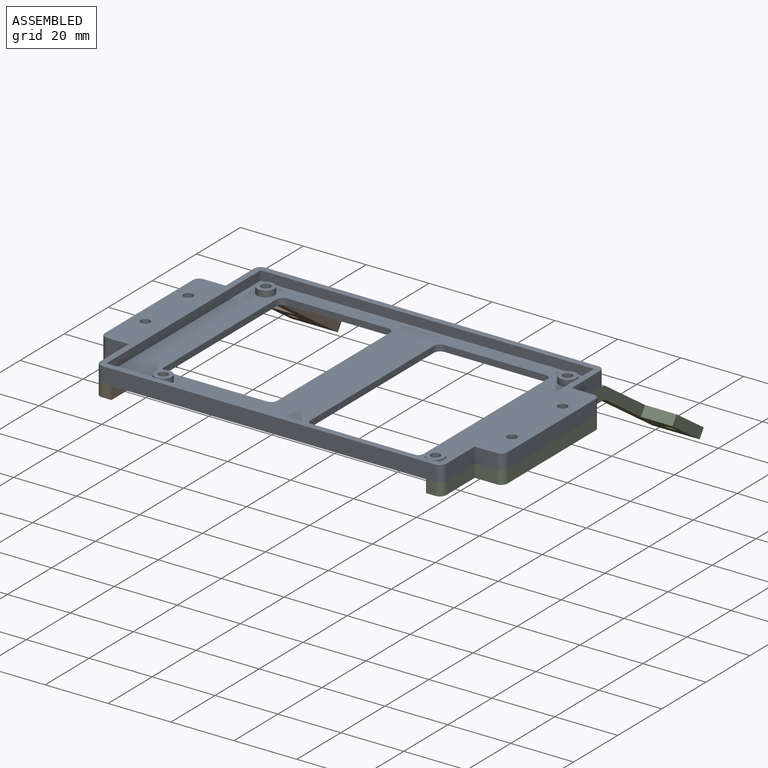
[diagram: assembled view]
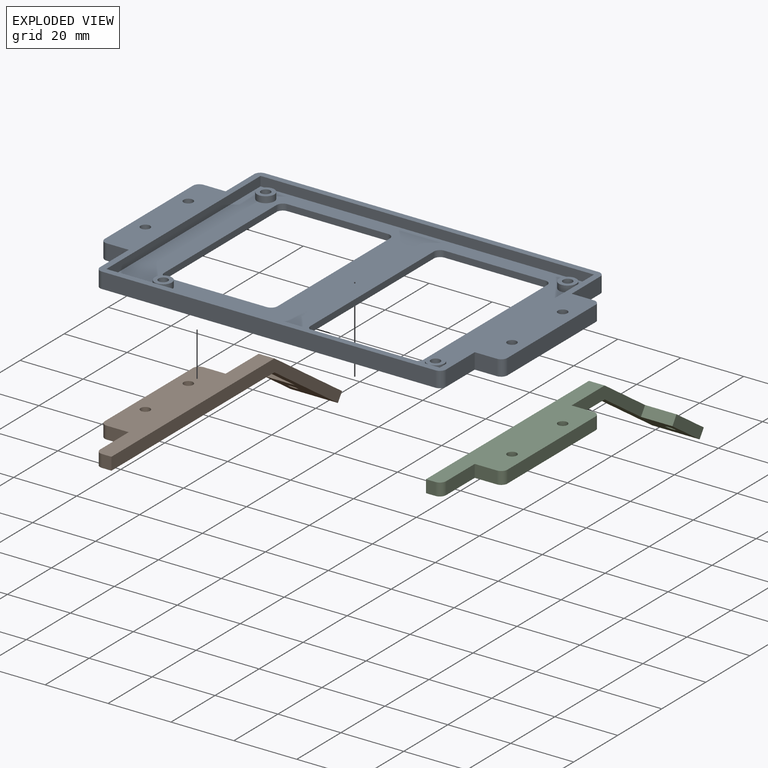
[diagram: exploded view]
GUIDED TOUR — MATED ASSEMBLY (Onshape document b38537ff23658e67a7022835, AutoMate assembly b38537ff23658e67a7022835_7bfc7229975b4f6cf5c11b7d_6aadd02ad1c09a29b3887e5f_default)

This assembly has 3 components, labeled P0..P2 below (a component is one placed occurrence of a part; the same part can appear more than once), held together by 2 mates. A mate is a constraint between two components; its type names the relative motion it leaves free:
  FASTENED — locks the two components together rigidly (no relative motion).
Axis/direction vectors are unit vectors and 'through' points are millimeter coordinates, both in the assembly's world frame.

MATES
  1. FASTENED "Fastened 2": P2 <-> P0, direction (0.000, 0.000, 1.000) through (55.48, -12.83, -35.52) mm
  2. FASTENED "Fastened 1": P1 <-> P0, direction (0.000, 0.000, 1.000) through (-63.52, -12.83, -35.52) mm

ASSEMBLY ORDER
  1. P2 — the base component [order verified]
  2. P1 [order verified]
  3. P0 [order verified]
Order-tag legend:
  [order verified] — this step's position reverses a verified removal order: the component was checked to insert without passing through the ones already placed.

Of the 3 components, 1 carries the full construction recipe — the FeatureScript program that regenerates the part's solid from scratch; the rest are supplied as boundary geometry only.
Each toured component is shown spotlighted twice — in the assembled view, then in the exploded view, where a leader line traces a displaced component back to its assembled socket (saturated green if recipe-attached, orange if geometry-only; every other component desaturated gray) — followed by its recipe or geometry summary and the mates that hold it.
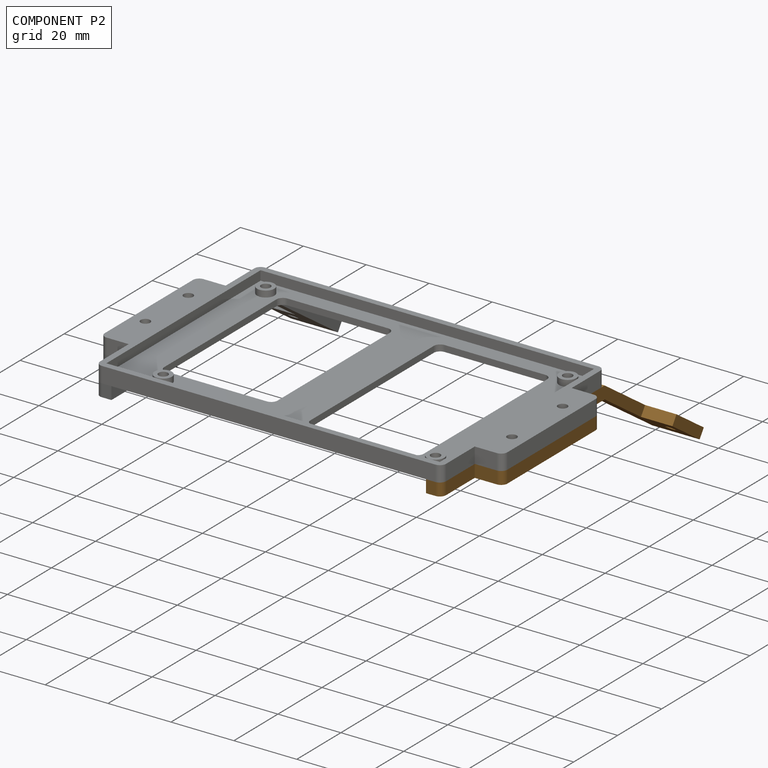
[diagram: component P2 — assembled]
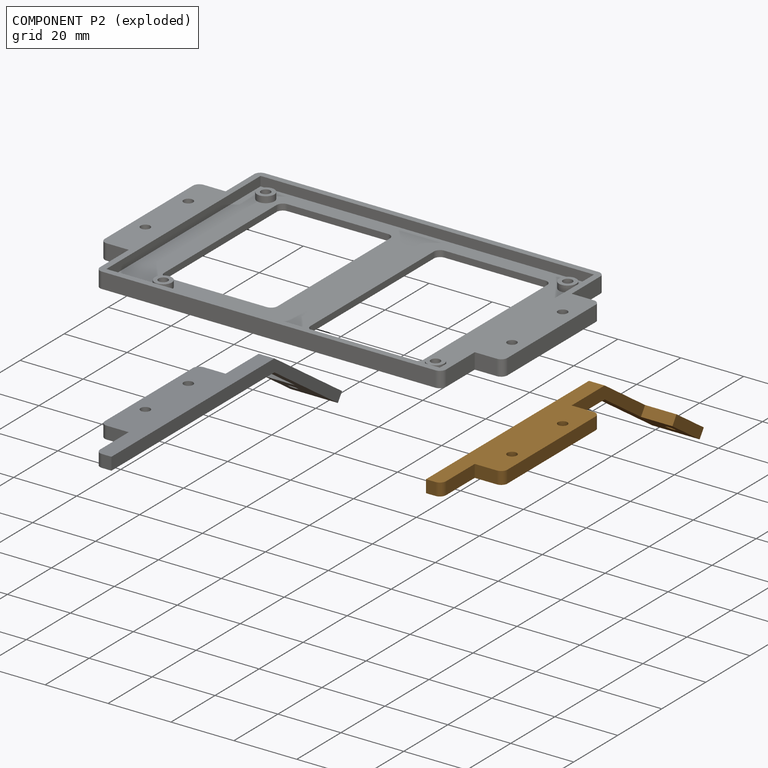
[diagram: component P2 — exploded]
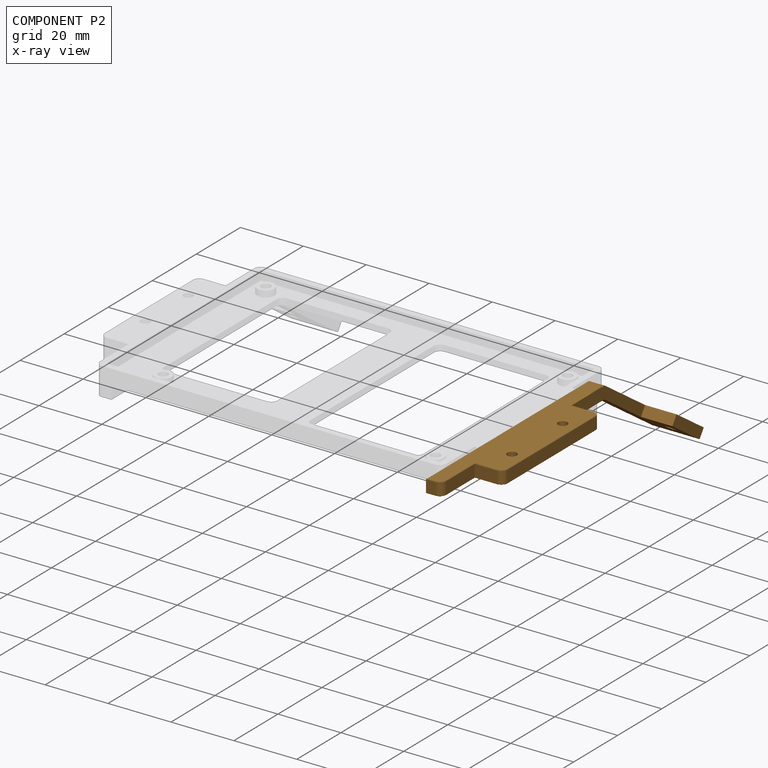
[diagram: component P2 — x-ray view]
COMPONENT P2 — geometry summary (no construction recipe available for this part):
  bounding box: 104.7 x 23.8 x 15.0 mm
  B-rep topology: 1 solid, 21 faces, 122 edges
  volume: 4064 mm^3 (11% of its bounding box)
Held by: FASTENED mate "Fastened 2" to P0.
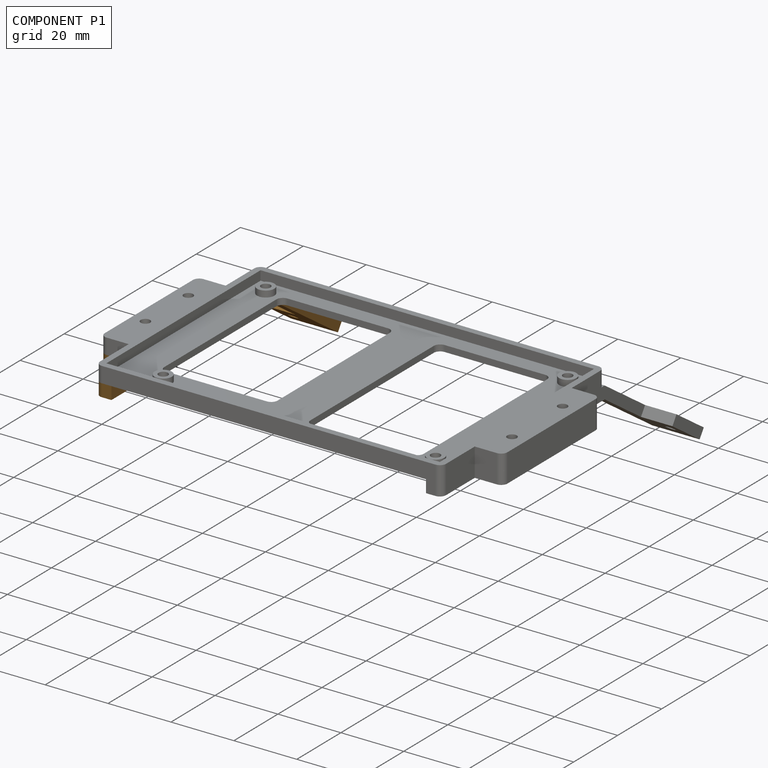
[diagram: component P1 — assembled]
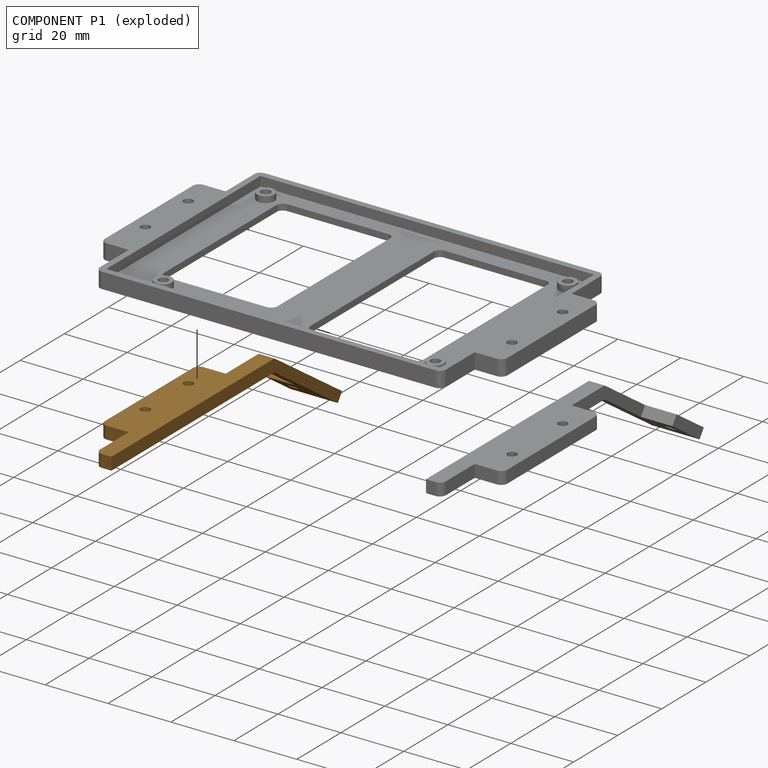
[diagram: component P1 — exploded]
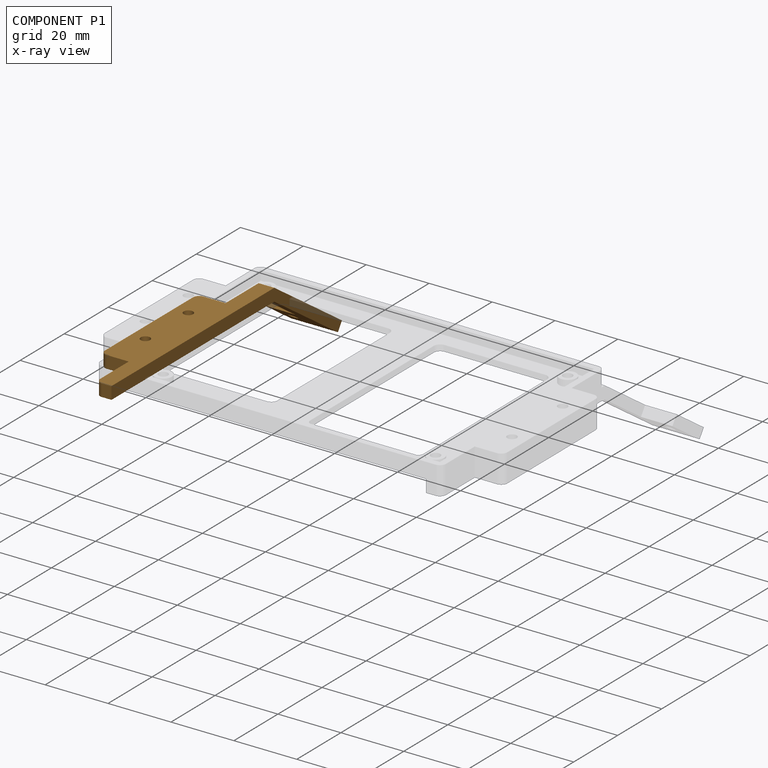
[diagram: component P1 — x-ray view]
COMPONENT P1 — geometry summary (no construction recipe available for this part):
  bounding box: 104.7 x 23.8 x 15.0 mm
  B-rep topology: 1 solid, 21 faces, 122 edges
  volume: 4064 mm^3 (11% of its bounding box)
Held by: FASTENED mate "Fastened 1" to P0.
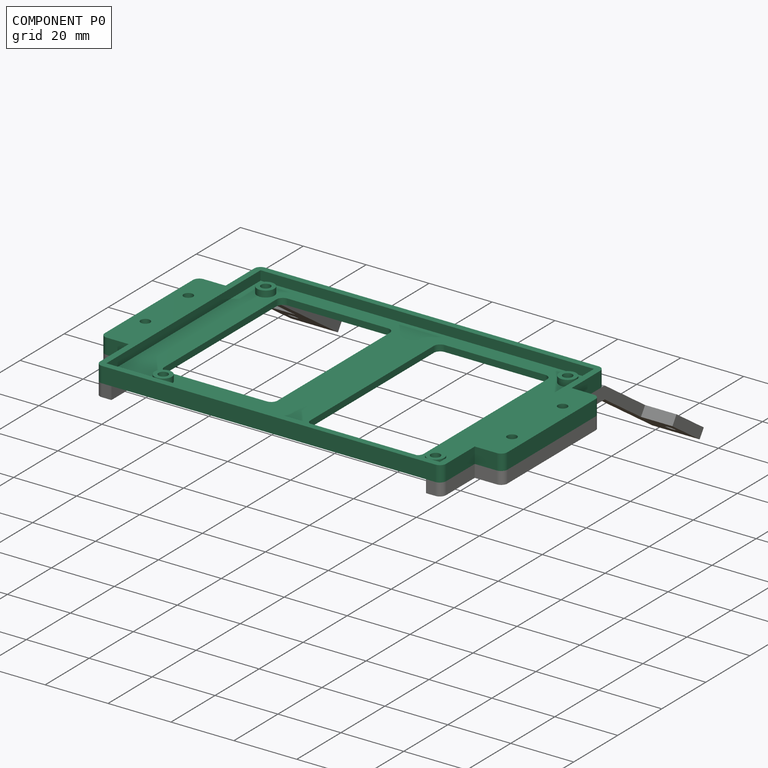
[diagram: component P0 — assembled]
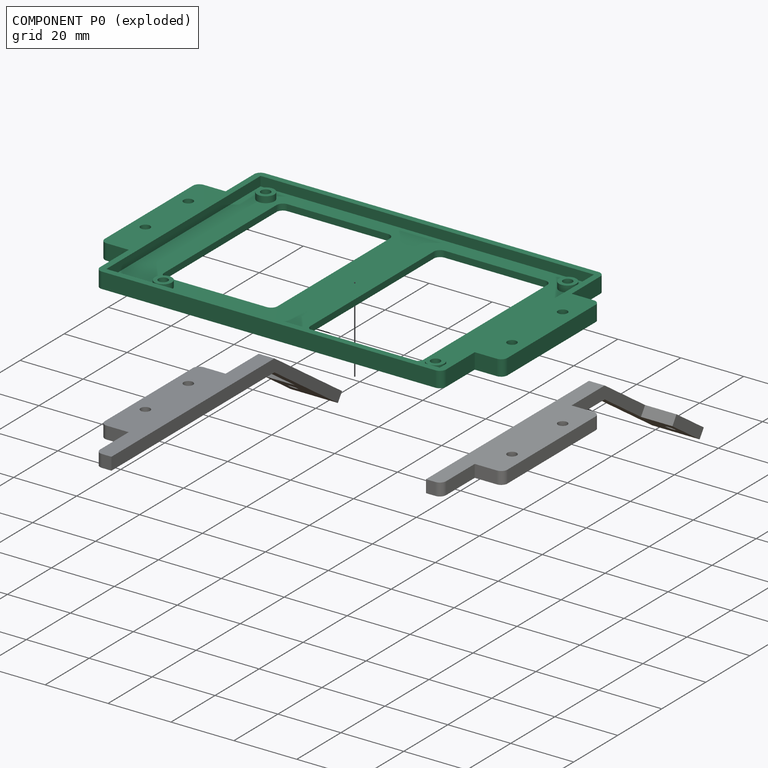
[diagram: component P0 — exploded]
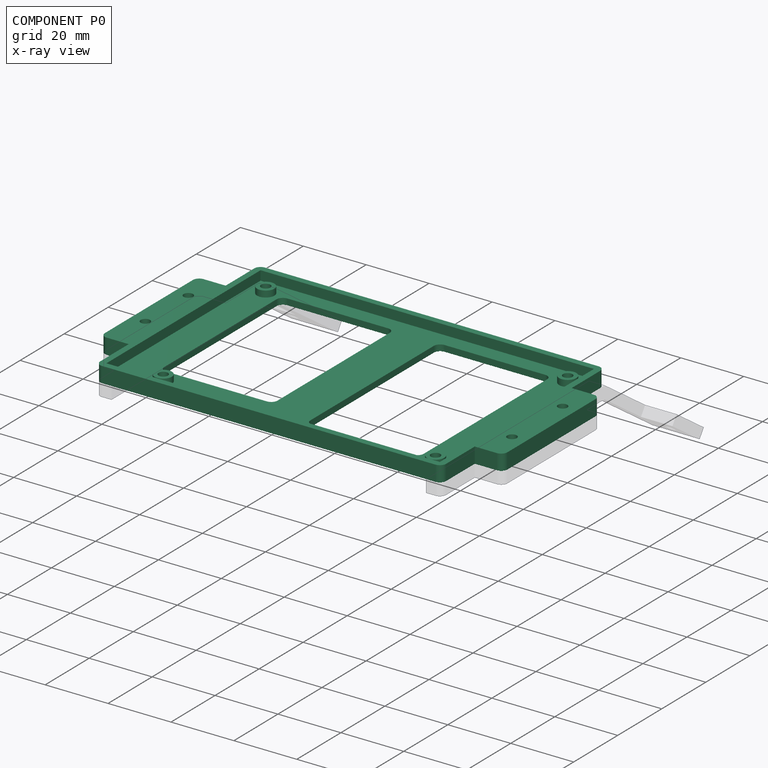
[diagram: component P0 — x-ray view]
COMPONENT P0 — recipe-attached (CADFS 00194304, mesh-verified: the recipe's output STEP matches this component's geometry to below the mesh-comparison resolution (tessellation chordal tolerance ~0.222 mm)).
Held by: FASTENED mate "Fastened 2" to P2; FASTENED mate "Fastened 1" to P1.
Construction recipe (FeatureScript — the CAD program that rebuilds this solid; sketch coordinates are in the units given by the * unit suffixes, e.g. mm):

FeatureScript 1511;
import(path : "onshape/std/geometry.fs", version : "1511.0");
import(path : "onshape/std/common.fs", version : "1511.0");
const mm = millimeter;
const VERTEX = EntityType.VERTEX;
const EDGE = EntityType.EDGE;
const FACE = EntityType.FACE;
const BODY = EntityType.BODY;
function v(x, y){return vector(x, y);}
function OD(order){return orderDisambiguation(order);}
function OSD(set){return originalSetDisambiguation(set);}
function TD(topology){return topologyDisambiguation(topology);}
function TDD(query){return trueDependencyDisambiguation(query);}
function sQuery(a, b, c) {return sketchEntityQuery(a, b, c);}

annotation { "Feature Type Name" : "Feature", "Feature Type Description" : "" }
export const myFeature = defineFeature(function(context is Context, id is Id, definition is map)
    precondition{}
    {
        {
            var Q0;
            Q0=qCreatedBy(makeId("Top.planeOp"),FACE);
            var sketch = newSketch(context, id + "F0", { "sketchPlane" : qUnion([Q0])});
            skLineSegment(sketch, "E0.bottom", {"start": v(-53.24, 37.4) * mm, "end": v(52.76, 37.4) * mm});
            skLineSegment(sketch, "E0.top", {"start": v(-53.24, -32.6) * mm, "end": v(52.76, -32.6) * mm});
            skLineSegment(sketch, "E0.left", {"start": v(-53.24, 37.4) * mm, "end": v(-53.24, -32.6) * mm});
            skLineSegment(sketch, "E0.right", {"start": v(52.76, 37.4) * mm, "end": v(52.76, -32.6) * mm});
            skCircle(sketch, "E1", {"center": v(-38.5, -27.85) * mm, "radius": 1.5 * mm});
            skCircle(sketch, "E2", {"center": v(-47.74, 31.9) * mm, "radius": 1.5 * mm});
            skCircle(sketch, "E3", {"center": v(48.26, 31.9) * mm, "radius": 1.5 * mm});
            skCircle(sketch, "E4", {"center": v(48.26, -28.1) * mm, "radius": 1.5 * mm});
            skLineSegment(sketch, "E5.0", {"start": v(-55.24, 37.4) * mm, "end": v(-55.24, -32.6) * mm});
            skLineSegment(sketch, "E5.1", {"start": v(-53.24, 39.4) * mm, "end": v(52.76, 39.4) * mm});
            skLineSegment(sketch, "E5.2", {"start": v(54.76, 37.4) * mm, "end": v(54.76, -32.6) * mm});
            skLineSegment(sketch, "E5.3", {"start": v(-53.24, -34.6) * mm, "end": v(52.76, -34.6) * mm});
            skPoint(sketch, "E6.visualSharp", {"position": v(-55.24, 39.4) * mm});
            skArc(sketch, "E6.filletArc", {"start": v(-53.24, 39.4) * mm, "mid": v(-54.66, 38.82) * mm, "end": v(-55.24, 37.4) * mm});
            skPoint(sketch, "E7.visualSharp", {"position": v(-55.24, -34.6) * mm});
            skArc(sketch, "E7.filletArc", {"start": v(-55.24, -32.6) * mm, "mid": v(-54.66, -34.01) * mm, "end": v(-53.24, -34.6) * mm});
            skPoint(sketch, "E8.visualSharp", {"position": v(54.76, -34.6) * mm});
            skArc(sketch, "E8.filletArc", {"start": v(52.76, -34.6) * mm, "mid": v(54.17, -34.01) * mm, "end": v(54.76, -32.6) * mm});
            skPoint(sketch, "E9.visualSharp", {"position": v(54.76, 39.4) * mm});
            skArc(sketch, "E9.filletArc", {"start": v(54.76, 37.4) * mm, "mid": v(54.17, 38.82) * mm, "end": v(52.76, 39.4) * mm});
            skLineSegment(sketch, "E10.bottom", {"start": v(-55.24, 24.4) * mm, "end": v(-64.24, 24.4) * mm});
            skLineSegment(sketch, "E10.top", {"start": v(-55.24, -19.6) * mm, "end": v(-64.24, -19.6) * mm});
            skLineSegment(sketch, "E10.left", {"start": v(-55.24, 24.4) * mm, "end": v(-55.24, -19.6) * mm});
            skLineSegment(sketch, "E10.right", {"start": v(-64.24, 24.4) * mm, "end": v(-64.24, -19.6) * mm});
            skLineSegment(sketch, "E11.bottom", {"start": v(54.76, 24.4) * mm, "end": v(63.76, 24.4) * mm});
            skLineSegment(sketch, "E11.top", {"start": v(54.76, -19.6) * mm, "end": v(63.76, -19.6) * mm});
            skLineSegment(sketch, "E11.left", {"start": v(54.76, 24.4) * mm, "end": v(54.76, -19.6) * mm});
            skLineSegment(sketch, "E11.right", {"start": v(63.76, 24.4) * mm, "end": v(63.76, -19.6) * mm});
            skPoint(sketch, "E12", {"position": v(-59.7, 0) * mm});
            skPoint(sketch, "E13", {"position": v(59.26, 0) * mm});
            skCircle(sketch, "E14", {"center": v(-59.74, 13.9) * mm, "radius": 1.5 * mm});
            skCircle(sketch, "E15", {"center": v(-59.74, -5.6) * mm, "radius": 1.5 * mm});
            skCircle(sketch, "E16", {"center": v(59.26, 13.9) * mm, "radius": 1.5 * mm});
            skCircle(sketch, "E17", {"center": v(59.26, -9.1) * mm, "radius": 1.5 * mm});
            skCircle(sketch, "E18.0", {"center": v(-47.74, 31.9) * mm, "radius": 2.75 * mm});
            skCircle(sketch, "E19.0", {"center": v(48.26, 31.9) * mm, "radius": 2.75 * mm});
            skCircle(sketch, "E20.0", {"center": v(48.26, -28.1) * mm, "radius": 2.75 * mm});
            skCircle(sketch, "E21.0", {"center": v(-38.5, -27.85) * mm, "radius": 2.75 * mm});
            skSolve(sketch);
        }
        {
            var Q0;
            Q0=makeQuery(id+"F0.imprint","IMPRINT",FACE,{"disambiguationData":[TD([[makeQuery(id+"F0.imprint","IMPRINT",EDGE,{"derivedFrom":sQuery(id+"F0.wireOp",EDGE,"E0.bottom")}),-1.0]])]});
            extrude(context, id + "F1", {"entities" : qUnion([Q0]), "depth" : 2 * mm});
        }
        {
            var Q0;
            Q0=makeQuery(id+"F0.imprint","IMPRINT",FACE,{"disambiguationData":[TD([[makeQuery(id+"F0.imprint","IMPRINT",EDGE,{"derivedFrom":sQuery(id+"F0.wireOp",EDGE,"E2")}),-1.0]])]});
            var Q1;
            Q1=makeQuery(id+"F0.imprint","IMPRINT",FACE,{"disambiguationData":[TD([[makeQuery(id+"F0.imprint","IMPRINT",EDGE,{"derivedFrom":sQuery(id+"F0.wireOp",EDGE,"E1")}),-1.0]])]});
            var Q2;
            Q2=makeQuery(id+"F0.imprint","IMPRINT",FACE,{"disambiguationData":[TD([[makeQuery(id+"F0.imprint","IMPRINT",EDGE,{"derivedFrom":sQuery(id+"F0.wireOp",EDGE,"E4")}),-1.0]])]});
            var Q3;
            Q3=makeQuery(id+"F0.imprint","IMPRINT",FACE,{"disambiguationData":[TD([[makeQuery(id+"F0.imprint","IMPRINT",EDGE,{"derivedFrom":sQuery(id+"F0.wireOp",EDGE,"E3")}),-1.0]])]});
            extrude(context, id + "F2", {"entities" : qUnion([Q0, Q1, Q2, Q3]), "operationType" : NewBodyOperationType.ADD, "depth" : 4 * mm});
        }
        {
            var Q0;
            Q0=makeQuery(id+"F0.imprint","IMPRINT",FACE,{"disambiguationData":[TD([[makeQuery(id+"F0.imprint","IMPRINT",EDGE,{"derivedFrom":sQuery(id+"F0.wireOp",EDGE,"E10.bottom")}),1.0]])]});
            var Q1;
            Q1=makeQuery(id+"F0.imprint","IMPRINT",FACE,{"disambiguationData":[TD([[makeQuery(id+"F0.imprint","IMPRINT",EDGE,{"derivedFrom":sQuery(id+"F0.wireOp",EDGE,"E0.bottom")}),1.0]])]});
            var Q2;
            Q2=makeQuery(id+"F0.imprint","IMPRINT",FACE,{"disambiguationData":[TD([[makeQuery(id+"F0.imprint","IMPRINT",EDGE,{"derivedFrom":sQuery(id+"F0.wireOp",EDGE,"E11.bottom")}),-1.0]])]});
            extrude(context, id + "F3", {"entities" : qUnion([Q0, Q1, Q2]), "operationType" : NewBodyOperationType.ADD, "depth" : 5 * mm});
        }
        {
            var Q0;
            Q0=makeQuery(id+"F3.opExtrude","SWEPT_EDGE",EDGE,{"disambiguationData":[OSD([sQuery(id+"F0.wireOp",EDGE,"E10.bottom"),sQuery(id+"F0.wireOp",EDGE,"E10.right")])]});
            var Q1;
            Q1=makeQuery(id+"F3.opExtrude","SWEPT_EDGE",EDGE,{"disambiguationData":[OSD([sQuery(id+"F0.wireOp",EDGE,"E10.top"),sQuery(id+"F0.wireOp",EDGE,"E10.right")])]});
            var Q2;
            Q2=makeQuery(id+"F3.opExtrude","SWEPT_EDGE",EDGE,{"disambiguationData":[OSD([sQuery(id+"F0.wireOp",EDGE,"E11.top"),sQuery(id+"F0.wireOp",EDGE,"E11.right")])]});
            var Q3;
            Q3=makeQuery(id+"F3.opExtrude","SWEPT_EDGE",EDGE,{"disambiguationData":[OSD([sQuery(id+"F0.wireOp",EDGE,"E11.bottom"),sQuery(id+"F0.wireOp",EDGE,"E11.right")])]});
            fillet(context, id + "F4", {"entities" : qUnion([Q0, Q1, Q2, Q3]), "radius" : 2 * mm, "tangentPropagation" : true, "allowEdgeOverflow" : false});
        }
        {
            var Q0;
            Q0=makeQuery(id+"F1.opExtrude","CAP_FACE",FACE,{"disambiguationData":[OSD([sQuery(id+"F0.wireOp",EDGE,"E0.bottom"),sQuery(id+"F0.wireOp",EDGE,"E0.top"),sQuery(id+"F0.wireOp",EDGE,"E0.left"),sQuery(id+"F0.wireOp",EDGE,"E0.right"),sQuery(id+"F0.wireOp",EDGE,"E18.0"),sQuery(id+"F0.wireOp",EDGE,"E19.0"),sQuery(id+"F0.wireOp",EDGE,"E20.0"),sQuery(id+"F0.wireOp",EDGE,"E21.0")])],"isStart":false});
            var sketch = newSketch(context, id + "F5", { "sketchPlane" : qUnion([Q0])});
            skLineSegment(sketch, "E22.bottom", {"start": v(40.76, -27.6) * mm, "end": v(8.76, -27.6) * mm});
            skLineSegment(sketch, "E22.top", {"start": v(40.76, 32.4) * mm, "end": v(8.76, 32.4) * mm});
            skLineSegment(sketch, "E22.left", {"start": v(42.76, -25.6) * mm, "end": v(42.76, 30.4) * mm});
            skLineSegment(sketch, "E22.right", {"start": v(6.76, -25.6) * mm, "end": v(6.76, 30.4) * mm});
            skLineSegment(sketch, "E23.bottom", {"start": v(-9.24, -22.6) * mm, "end": v(-41.24, -22.6) * mm});
            skLineSegment(sketch, "E23.top", {"start": v(-9.24, 32.4) * mm, "end": v(-41.24, 32.4) * mm});
            skLineSegment(sketch, "E23.left", {"start": v(-7.24, -20.6) * mm, "end": v(-7.24, 30.4) * mm});
            skLineSegment(sketch, "E23.right", {"start": v(-43.24, -20.6) * mm, "end": v(-43.24, 30.4) * mm});
            skPoint(sketch, "E24.visualSharp", {"position": v(42.76, -27.6) * mm});
            skArc(sketch, "E24.filletArc", {"start": v(40.76, -27.6) * mm, "mid": v(42.17, -27.01) * mm, "end": v(42.76, -25.6) * mm});
            skPoint(sketch, "E25.visualSharp", {"position": v(42.76, 32.4) * mm});
            skArc(sketch, "E25.filletArc", {"start": v(42.76, 30.4) * mm, "mid": v(42.17, 31.82) * mm, "end": v(40.76, 32.4) * mm});
            skPoint(sketch, "E26.visualSharp", {"position": v(6.76, 32.4) * mm});
            skArc(sketch, "E26.filletArc", {"start": v(8.76, 32.4) * mm, "mid": v(7.34, 31.82) * mm, "end": v(6.76, 30.4) * mm});
            skPoint(sketch, "E27.visualSharp", {"position": v(6.76, -27.6) * mm});
            skArc(sketch, "E27.filletArc", {"start": v(6.76, -25.6) * mm, "mid": v(7.34, -27.01) * mm, "end": v(8.76, -27.6) * mm});
            skPoint(sketch, "E28.visualSharp", {"position": v(-7.24, -22.6) * mm});
            skArc(sketch, "E28.filletArc", {"start": v(-9.24, -22.6) * mm, "mid": v(-7.83, -22.01) * mm, "end": v(-7.24, -20.6) * mm});
            skPoint(sketch, "E29.visualSharp", {"position": v(-7.24, 32.4) * mm});
            skArc(sketch, "E29.filletArc", {"start": v(-7.24, 30.4) * mm, "mid": v(-7.83, 31.82) * mm, "end": v(-9.24, 32.4) * mm});
            skPoint(sketch, "E30.visualSharp", {"position": v(-43.24, 32.4) * mm});
            skArc(sketch, "E30.filletArc", {"start": v(-41.24, 32.4) * mm, "mid": v(-42.66, 31.82) * mm, "end": v(-43.24, 30.4) * mm});
            skPoint(sketch, "E31.visualSharp", {"position": v(-43.24, -22.6) * mm});
            skArc(sketch, "E31.filletArc", {"start": v(-43.24, -20.6) * mm, "mid": v(-42.66, -22.01) * mm, "end": v(-41.24, -22.6) * mm});
            skSolve(sketch);
        }
        {
            var Q0;
            Q0=makeQuery(id+"F5.imprint","IMPRINT",FACE,{"disambiguationData":[TD([[makeQuery(id+"F5.imprint","IMPRINT",EDGE,{"derivedFrom":sQuery(id+"F5.wireOp",EDGE,"E22.bottom")}),-1.0]])]});
            var Q1;
            Q1=makeQuery(id+"F5.imprint","IMPRINT",FACE,{"disambiguationData":[TD([[makeQuery(id+"F5.imprint","IMPRINT",EDGE,{"derivedFrom":sQuery(id+"F5.wireOp",EDGE,"E23.bottom")}),-1.0]])]});
            extrude(context, id + "F6", {"entities" : qUnion([Q0, Q1]), "operationType" : NewBodyOperationType.REMOVE, "oppositeDirection" : true, "depth" : 2 * mm});
        }
    });
PROVENANCE & LICENSES
Assembly (occurrences, transforms, mates, per-part STEP geometry): AutoMate dataset, Zenodo record 7776208, CC0.
Construction recipes: CADFS (HuggingFace VladPyatov/CADFS, CC-BY-4.0, layered over the ABC dataset), FeatureScript reconstruction programs keyed by ABC model id.
Join: ABC meta listings map ABC model id -> Onshape documentId; within a shared document, parts are matched by geometric signature (bounding-box dims + volume at 0.1% relative tolerance, exact B-rep face/solid counts).
Verification: 1 of this assembly's 3 components carries a recipe attachment, and every attachment is mesh-verified: the CADFS STEP and the AutoMate member STEP were compared as meshes in their shared local frame (symmetric sampled-point-to-mesh distance); worst across the 1 attachment: below the mesh-comparison resolution (tessellation chordal tolerance ~0.222 mm) on a 148 mm part.
Renders: orthographic iso camera (az 35 / el 25); the floor grid conveys scale (grid pitch printed in each image; no ruler). In the exploded view each component is displaced by its stored offset vector: the offsets alone carry the explosion direction (mate normal/axis signs are not orientation cues and do not encode it), and separation distances are assigned per mate-chain, not proportionally to assembly-order depth.
